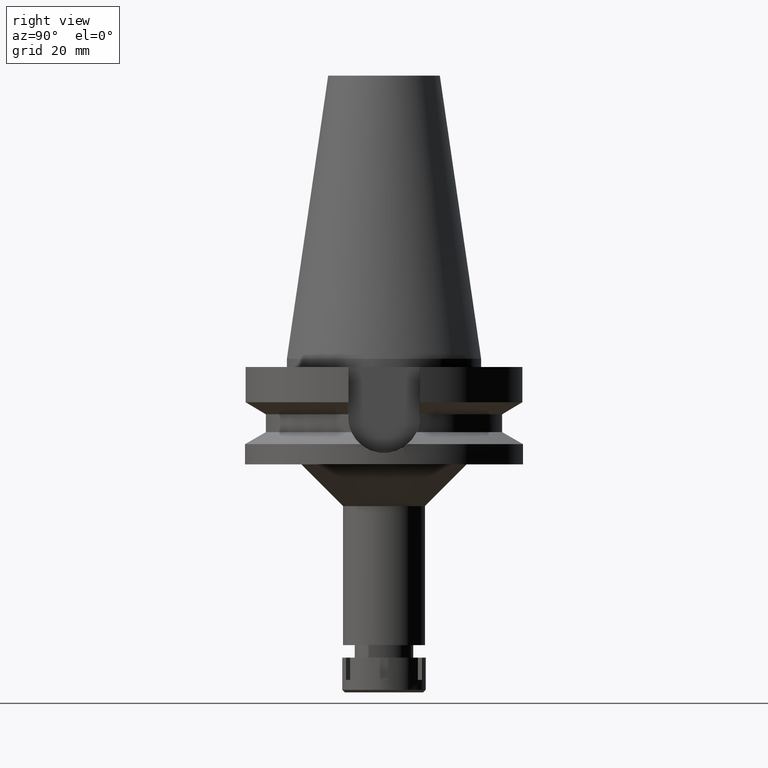
[diagram: clean part render]
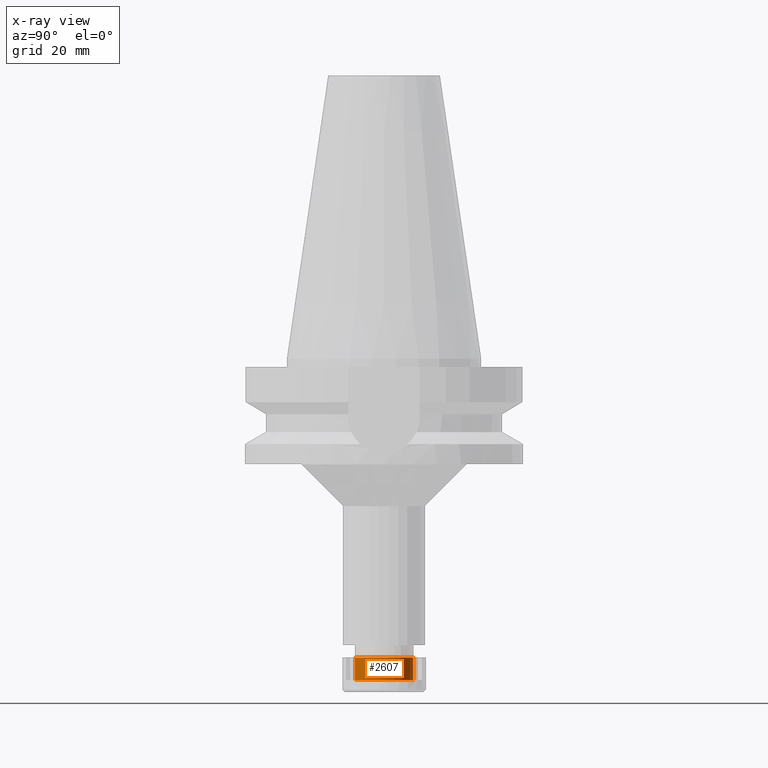
[diagram: x-ray — body ghosted, one internal face saturated and labeled with its STEP entity id]
A machine part, right view, then the same camera in x-ray: the body is ghosted and one INTERNAL B-rep face — a face not visible from any outside direction — is saturated and labeled: STEP entity #2607.
In plain terms, the highlighted cylindrical surface (edge-blend (fillet) strip) has radius 10.5 mm, axis along (0, 0, -1).
Its self-contained STEP definition (entity closure, byte-faithful):
#186 = EDGE_CURVE ( 'NONE', #2547, #2314, #1155, .T. ) ;
#341 = EDGE_CURVE ( 'NONE', #1396, #2547, #3525, .T. ) ;
#525 = DIRECTION ( 'NONE',  ( 0.0000000000000000000, 1.000000000000000000, 0.0000000000000000000 ) ) ;
#695 = CIRCLE ( 'NONE', #3310, 10.50000000000000000 ) ;
#728 = VECTOR ( 'NONE', #1746, 1000.000000000000000 ) ;
#785 = CARTESIAN_POINT ( 'NONE',  ( 0.0000000000000000000, 0.0000000000000000000, -8.200000000000001066 ) ) ;
#871 = ORIENTED_EDGE ( 'NONE', *, *, #3325, .T. ) ;
#1017 = ORIENTED_EDGE ( 'NONE', *, *, #341, .T. ) ;
#1155 = CIRCLE ( 'NONE', #3234, 10.50000000000000000 ) ;
#1322 = EDGE_LOOP ( 'NONE', ( #871, #1017, #3653, #1956 ) ) ;
#1396 = VERTEX_POINT ( 'NONE', #1686 ) ;
#1400 = VECTOR ( 'NONE', #2118, 1000.000000000000000 ) ;
#1446 = LINE ( 'NONE', #2574, #728 ) ;
#1452 = EDGE_CURVE ( 'NONE', #2451, #2314, #1446, .T. ) ;
#1485 = DIRECTION ( 'NONE',  ( 0.0000000000000000000, -1.000000000000000000, 0.0000000000000000000 ) ) ;
#1686 = CARTESIAN_POINT ( 'NONE',  ( 0.0000000000000000000, -10.50000000000000000, -8.200000000000001066 ) ) ;
#1711 = CARTESIAN_POINT ( 'NONE',  ( 0.0000000000000000000, 10.50000000000000000, -8.200000000000001066 ) ) ;
#1746 = DIRECTION ( 'NONE',  ( 0.0000000000000000000, 0.0000000000000000000, 1.000000000000000000 ) ) ;
#1836 = CARTESIAN_POINT ( 'NONE',  ( 0.0000000000000000000, -10.50000000000000000, -8.200000000000001066 ) ) ;
#1860 = DIRECTION ( 'NONE',  ( 0.0000000000000000000, -1.000000000000000000, 0.0000000000000000000 ) ) ;
#1907 = DIRECTION ( 'NONE',  ( 0.0000000000000000000, 0.0000000000000000000, -1.000000000000000000 ) ) ;
#1956 = ORIENTED_EDGE ( 'NONE', *, *, #1452, .F. ) ;
#2077 = FACE_OUTER_BOUND ( 'NONE', #1322, .T. ) ;
#2118 = DIRECTION ( 'NONE',  ( 0.0000000000000000000, 0.0000000000000000000, 1.000000000000000000 ) ) ;
#2235 = CARTESIAN_POINT ( 'NONE',  ( 0.0000000000000000000, 10.50000000000000000, 0.0000000000000000000 ) ) ;
#2314 = VERTEX_POINT ( 'NONE', #2235 ) ;
#2451 = VERTEX_POINT ( 'NONE', #1711 ) ;
#2547 = VERTEX_POINT ( 'NONE', #2875 ) ;
#2574 = CARTESIAN_POINT ( 'NONE',  ( 0.0000000000000000000, 10.50000000000000000, -8.200000000000001066 ) ) ;
#2607 = ADVANCED_FACE ( 'NONE', ( #2077 ), #3006, .F. ) ;
#2686 = CARTESIAN_POINT ( 'NONE',  ( 0.0000000000000000000, 0.0000000000000000000, 0.0000000000000000000 ) ) ;
#2875 = CARTESIAN_POINT ( 'NONE',  ( 0.0000000000000000000, -10.50000000000000000, 0.0000000000000000000 ) ) ;
#2945 = DIRECTION ( 'NONE',  ( 0.0000000000000000000, 0.0000000000000000000, 1.000000000000000000 ) ) ;
#2950 = AXIS2_PLACEMENT_3D ( 'NONE', #2686, #2972, #1860 ) ;
#2972 = DIRECTION ( 'NONE',  ( 0.0000000000000000000, 0.0000000000000000000, -1.000000000000000000 ) ) ;
#3006 = CYLINDRICAL_SURFACE ( 'NONE', #2950, 10.50000000000000000 ) ;
#3234 = AXIS2_PLACEMENT_3D ( 'NONE', #3493, #2945, #1485 ) ;
#3310 = AXIS2_PLACEMENT_3D ( 'NONE', #785, #1907, #525 ) ;
#3325 = EDGE_CURVE ( 'NONE', #2451, #1396, #695, .T. ) ;
#3493 = CARTESIAN_POINT ( 'NONE',  ( 0.0000000000000000000, 0.0000000000000000000, 0.0000000000000000000 ) ) ;
#3525 = LINE ( 'NONE', #1836, #1400 ) ;
#3653 = ORIENTED_EDGE ( 'NONE', *, *, #186, .T. ) ;